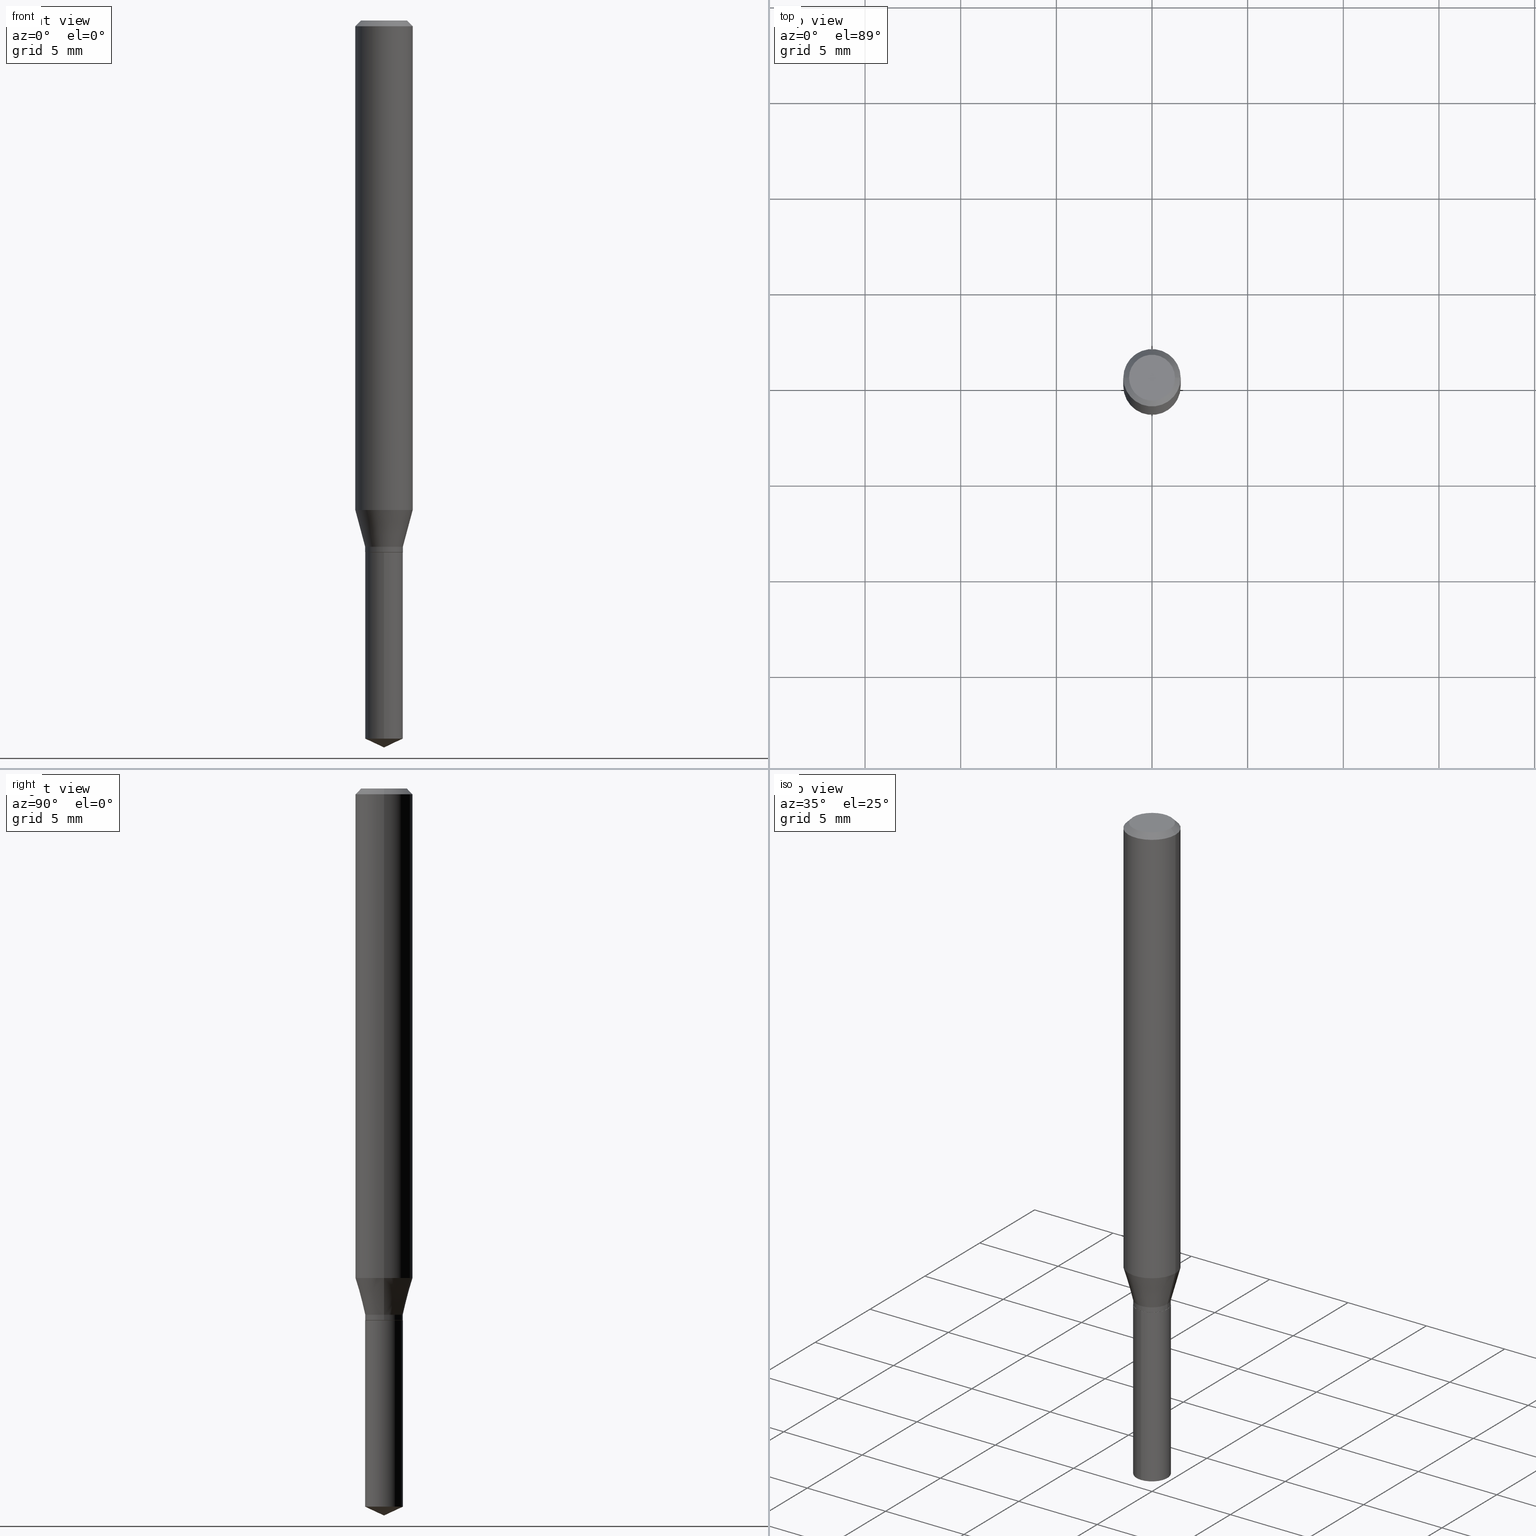
[diagram: canonical four-view strip — front | top / right | iso, engineering-drawing reading convention]
A machine part, canonical four-view strip (front | top / right | iso — engineering-drawing reading convention). The complete STEP part file that produces these views, byte-faithful:
ISO-10303-21;
HEADER;
FILE_DESCRIPTION (( 'STEP AP203' ),
    '1' );
FILE_NAME ('07597.STEP',
    '2024-04-23T23:31:26',
    ( '' ),
    ( '' ),
    'SwSTEP 2.0',
    'SolidWorks 2023',
    '' );
FILE_SCHEMA (( 'CONFIG_CONTROL_DESIGN' ));
ENDSEC;

DATA;
#1 = FACE_OUTER_BOUND ( 'NONE', #345, .T. ) ;
#2 = ORIENTED_EDGE ( 'NONE', *, *, #401, .F. ) ;
#3 = AXIS2_PLACEMENT_3D ( 'NONE', #266, #162, #277 ) ;
#4 = FACE_OUTER_BOUND ( 'NONE', #122, .T. ) ;
#5 = ORIENTED_EDGE ( 'NONE', *, *, #211, .F. ) ;
#6 = ADVANCED_FACE ( 'NONE', ( #465 ), #451, .F. ) ;
#7 = ORIENTED_EDGE ( 'NONE', *, *, #262, .T. ) ;
#8 = DIRECTION ( 'NONE',  ( 2.445458899330789267E-29, -3.491495526022433599E-15, -1.000000000000000000 ) ) ;
#9 = DIRECTION ( 'NONE',  ( -2.438088387897960049E-29, 3.491481338843145188E-15, 1.000000000000000000 ) ) ;
#10 = AXIS2_PLACEMENT_3D ( 'NONE', #343, #462, #77 ) ;
#11 = DIRECTION ( 'NONE',  ( -2.445458899330790108E-29, 3.491495526022433205E-15, 1.000000000000000000 ) ) ;
#12 = DIRECTION ( 'NONE',  ( -6.982962677686265922E-15, -1.000000000000000000, 3.520422672247761757E-15 ) ) ;
#13 = APPROVAL ( #155, 'UNSPECIFIED' ) ;
#14 = CYLINDRICAL_SURFACE ( 'NONE', #388, 0.03880000000000000115 ) ;
#15 = CIRCLE ( 'NONE', #239, 0.03880000000000000115 ) ;
#16 = DIRECTION ( 'NONE',  ( 1.000000000000000000, -6.982962677686266711E-15, 0.000000000000000000 ) ) ;
#17 = VECTOR ( 'NONE', #355, 39.37007874015748143 ) ;
#18 = EDGE_CURVE ( 'NONE', #201, #302, #119, .T. ) ;
#19 = VERTEX_POINT ( 'NONE', #294 ) ;
#20 = DIRECTION ( 'NONE',  ( -6.982962677686265922E-15, -1.000000000000000000, 3.520422672247761757E-15 ) ) ;
#21 = CARTESIAN_POINT ( 'NONE',  ( 2.648198170217884181E-29, -3.780925141833242313E-15, -1.082899999999999974 ) ) ;
#22 = CARTESIAN_POINT ( 'NONE',  ( 3.658672935554494692E-29, -5.223595400746700193E-15, -1.496099999999999985 ) ) ;
#23 = DIRECTION ( 'NONE',  ( -1.000000000000000000, 6.982962677686266711E-15, 0.000000000000000000 ) ) ;
#24 = ORIENTED_EDGE ( 'NONE', *, *, #474, .F. ) ;
#25 = VECTOR ( 'NONE', #190, 39.37007874015748143 ) ;
#26 = VECTOR ( 'NONE', #182, 39.37007874015748143 ) ;
#27 = ORIENTED_EDGE ( 'NONE', *, *, #18, .F. ) ;
#28 = ORIENTED_EDGE ( 'NONE', *, *, #354, .F. ) ;
#29 = CARTESIAN_POINT ( 'NONE',  ( -2.709389518942003441E-16, -0.03880000000000382449, -1.094499999999999806 ) ) ;
#30 = AXIS2_PLACEMENT_3D ( 'NONE', #193, #473, #361 ) ;
#31 = CIRCLE ( 'NONE', #478, 0.03829999999999999377 ) ;
#32 = COORDINATED_UNIVERSAL_TIME_OFFSET ( 5, 0, .BEHIND. ) ;
#33 = EDGE_CURVE ( 'NONE', #379, #304, #192, .T. ) ;
#34 = CARTESIAN_POINT ( 'NONE',  ( 2.676565608369631794E-29, -3.821426325363822773E-15, -1.094499999999999806 ) ) ;
#35 = CARTESIAN_POINT ( 'NONE',  ( 3.614416857297380941E-29, -5.160440217849142988E-15, -1.478007262863586080 ) ) ;
#36 = CARTESIAN_POINT ( 'NONE',  ( 2.676565608369631794E-29, -3.821426325363822773E-15, -1.094499999999999806 ) ) ;
#37 = CARTESIAN_POINT ( 'NONE',  ( 3.658651059288794515E-29, -5.223626456482161457E-15, -1.496099999999999985 ) ) ;
#38 = EDGE_CURVE ( 'NONE', #304, #201, #156, .T. ) ;
#39 = ORIENTED_EDGE ( 'NONE', *, *, #268, .F. ) ;
#40 = AXIS2_PLACEMENT_3D ( 'NONE', #129, #8, #115 ) ;
#41 = FACE_OUTER_BOUND ( 'NONE', #198, .T. ) ;
#42 = EDGE_LOOP ( 'NONE', ( #163, #248, #141, #24 ) ) ;
#43 = CARTESIAN_POINT ( 'NONE',  ( -0.03880000000000000115, -3.524612281788902517E-15, -1.082899999999999974 ) ) ;
#44 = ORIENTED_EDGE ( 'NONE', *, *, #38, .F. ) ;
#45 = CYLINDRICAL_SURFACE ( 'NONE', #10, 0.03880000000000000115 ) ;
#46 = AXIS2_PLACEMENT_3D ( 'NONE', #87, #241, #207 ) ;
#47 = EDGE_CURVE ( 'NONE', #201, #304, #341, .T. ) ;
#48 = DIRECTION ( 'NONE',  ( -2.445468806185136597E-29, 3.491481338843145583E-15, 1.000000000000000000 ) ) ;
#49 = DIRECTION ( 'NONE',  ( 1.000000000000000000, -6.982962677686266711E-15, 4.876176775795935793E-29 ) ) ;
#50 = DIRECTION ( 'NONE',  ( -0.7071067811865453523, 2.468850131082234184E-15, -0.7071067811865496822 ) ) ;
#51 = EDGE_CURVE ( 'NONE', #302, #19, #70, .T. ) ;
#52 = ORIENTED_EDGE ( 'NONE', *, *, #84, .F. ) ;
#53 = AXIS2_PLACEMENT_3D ( 'NONE', #237, #11, #12 ) ;
#54 = CARTESIAN_POINT ( 'NONE',  ( 2.676565608369631794E-29, -3.821426325363822773E-15, -1.094499999999999806 ) ) ;
#55 = DIRECTION ( 'NONE',  ( 2.445468806185136597E-29, -3.491481338843145583E-15, -1.000000000000000000 ) ) ;
#56 = ORIENTED_EDGE ( 'NONE', *, *, #89, .F. ) ;
#57 = DIRECTION ( 'NONE',  ( -2.445468806185136597E-29, 3.491481338843145583E-15, 1.000000000000000000 ) ) ;
#58 = ORIENTED_EDGE ( 'NONE', *, *, #47, .F. ) ;
#59 = LINE ( 'NONE', #437, #217 ) ;
#60 = ORIENTED_EDGE ( 'NONE', *, *, #245, .T. ) ;
#61 = CIRCLE ( 'NONE', #352, 0.03880000000000000115 ) ;
#62 = ADVANCED_FACE ( 'NONE', ( #1 ), #316, .T. ) ;
#63 = CC_DESIGN_APPROVAL ( #318, ( #364 ) ) ;
#64 = VERTEX_POINT ( 'NONE', #488 ) ;
#65 = ORIENTED_EDGE ( 'NONE', *, *, #191, .F. ) ;
#66 = PERSON_AND_ORGANIZATION ( #126, #295 ) ;
#67 = DIRECTION ( 'NONE',  ( 1.000000000000000000, -6.982962677686260400E-15, 0.000000000000000000 ) ) ;
#68 = ADVANCED_FACE ( 'NONE', ( #480 ), #78, .T. ) ;
#69 = APPROVAL_STATUS ( 'not_yet_approved' ) ;
#70 = LINE ( 'NONE', #265, #255 ) ;
#71 = AXIS2_PLACEMENT_3D ( 'NONE', #74, #229, #377 ) ;
#72 = AXIS2_PLACEMENT_3D ( 'NONE', #172, #174, #92 ) ;
#73 = CARTESIAN_POINT ( 'NONE',  ( 0.05905000000000011628, -3.929403776508231470E-15, -1.007325971146729948 ) ) ;
#74 = CARTESIAN_POINT ( 'NONE',  ( 2.888098660104663766E-31, -4.123439461173779647E-17, -0.01181000000000007044 ) ) ;
#75 = ORIENTED_EDGE ( 'NONE', *, *, #457, .T. ) ;
#76 = PERSON_AND_ORGANIZATION ( #126, #295 ) ;
#77 = DIRECTION ( 'NONE',  ( -6.982962677686265922E-15, -1.000000000000000000, 3.520422672247761757E-15 ) ) ;
#78 = CONICAL_SURFACE ( 'NONE', #272, 0.03829999999999999377, 0.7853981633974141952 ) ;
#79 = ORIENTED_EDGE ( 'NONE', *, *, #334, .F. ) ;
#80 = CIRCLE ( 'NONE', #479, 0.05904999999999999832 ) ;
#81 = DATE_AND_TIME ( #114, #132 ) ;
#82 = CARTESIAN_POINT ( 'NONE',  ( 2.463384240099476969E-29, -3.517059830390856155E-15, -1.007325971146729948 ) ) ;
#83 = ORIENTED_EDGE ( 'NONE', *, *, #18, .T. ) ;
#84 = EDGE_CURVE ( 'NONE', #64, #104, #372, .T. ) ;
#85 = CARTESIAN_POINT ( 'NONE',  ( 0.03880000000000000115, -4.051864093727469133E-15, -1.082899999999999974 ) ) ;
#86 =( GEOMETRIC_REPRESENTATION_CONTEXT ( 3 ) GLOBAL_UNCERTAINTY_ASSIGNED_CONTEXT ( ( #187 ) ) GLOBAL_UNIT_ASSIGNED_CONTEXT ( ( #253, #221, #487 ) ) REPRESENTATION_CONTEXT ( 'NONE', 'WORKASPACE' ) );
#87 = CARTESIAN_POINT ( 'NONE',  ( 2.675342873966538993E-29, -3.819680584694400481E-15, -1.093999999999999861 ) ) ;
#88 = CARTESIAN_POINT ( 'NONE',  ( 0.03880000000000000115, -4.090619536588628090E-15, -1.093999999999999861 ) ) ;
#89 = EDGE_CURVE ( 'NONE', #302, #164, #332, .T. ) ;
#90 = CARTESIAN_POINT ( 'NONE',  ( 8.265746106709734507E-48, -1.180129479067563789E-33, -3.380025165646692144E-19 ) ) ;
#91 = VERTEX_POINT ( 'NONE', #152 ) ;
#92 = DIRECTION ( 'NONE',  ( 1.000000000000000000, -6.982962677686266711E-15, 4.876176775795935232E-29 ) ) ;
#93 = ADVANCED_BREP_SHAPE_REPRESENTATION ( '07597', ( #278, #439, #326 ), #86 ) ;
#94 = DIRECTION ( 'NONE',  ( -2.445468806185136597E-29, 3.491481338843145583E-15, 1.000000000000000000 ) ) ;
#95 = ORIENTED_EDGE ( 'NONE', *, *, #245, .F. ) ;
#96 = DIRECTION ( 'NONE',  ( -2.445458899330790108E-29, 3.491495526022433205E-15, 1.000000000000000000 ) ) ;
#97 = CC_DESIGN_DATE_AND_TIME_ASSIGNMENT ( #117, #308, ( #441 ) ) ;
#98 = ORIENTED_EDGE ( 'NONE', *, *, #391, .T. ) ;
#99 =( LENGTH_UNIT ( ) NAMED_UNIT ( * ) SI_UNIT ( $, .METRE. ) );
#100 = ORIENTED_EDGE ( 'NONE', *, *, #51, .T. ) ;
#101 = AXIS2_PLACEMENT_3D ( 'NONE', #411, #417, #335 ) ;
#102 = CALENDAR_DATE ( 2024, 23, 4 ) ;
#103 = VECTOR ( 'NONE', #176, 39.37007874015748854 ) ;
#104 = VERTEX_POINT ( 'NONE', #213 ) ;
#105 = DATE_AND_TIME ( #263, #159 ) ;
#106 = CARTESIAN_POINT ( 'NONE',  ( 2.675342873966538993E-29, -3.819680584694400481E-15, -1.093999999999999861 ) ) ;
#107 = EDGE_CURVE ( 'NONE', #91, #220, #137, .T. ) ;
#108 = DATE_AND_TIME ( #102, #124 ) ;
#109 = FACE_OUTER_BOUND ( 'NONE', #258, .T. ) ;
#110 = APPLICATION_PROTOCOL_DEFINITION ( 'international standard', 'config_control_design', 1994, #393 ) ;
#111 = CARTESIAN_POINT ( 'NONE',  ( -0.03829999999999999377, -3.549288457567704397E-15, -1.094499999999999806 ) ) ;
#112 = CONICAL_SURFACE ( 'NONE', #3, 84.42940631927456252, 1.134464013796316895 ) ;
#113 = CC_DESIGN_APPROVAL ( #13, ( #441 ) ) ;
#114 = CALENDAR_DATE ( 2024, 23, 4 ) ;
#115 = DIRECTION ( 'NONE',  ( 6.982962677686265922E-15, 1.000000000000000000, -3.491495526022433599E-15 ) ) ;
#116 = VERTEX_POINT ( 'NONE', #29 ) ;
#117 = DATE_AND_TIME ( #418, #168 ) ;
#118 = DIRECTION ( 'NONE',  ( -2.445468806185136877E-29, 3.491481338843145188E-15, 1.000000000000000000 ) ) ;
#119 = LINE ( 'NONE', #382, #323 ) ;
#120 = COORDINATED_UNIVERSAL_TIME_OFFSET ( 5, 0, .BEHIND. ) ;
#121 = CARTESIAN_POINT ( 'NONE',  ( 2.648198170217884181E-29, -3.780925141833242313E-15, -1.082899999999999974 ) ) ;
#122 = EDGE_LOOP ( 'NONE', ( #321, #267, #98, #2 ) ) ;
#123 = CONICAL_SURFACE ( 'NONE', #396, 0.03880000000000000115, 0.2617993877991499074 ) ;
#124 = LOCAL_TIME ( 19, 31, 26.00000000000000000, #329 ) ;
#125 = PERSON_AND_ORGANIZATION_ROLE ( 'classification_officer' ) ;
#126 = PERSON ( 'UNSPECIFIED', 'UNSPECIFIED', 'UNSPECIFIED', ('UNSPECIFIED'), ('UNSPECIFIED'), ('UNSPECIFIED') ) ;
#127 = DIRECTION ( 'NONE',  ( -6.982962677686265922E-15, -1.000000000000000000, 0.000000000000000000 ) ) ;
#128 = ADVANCED_FACE ( 'NONE', ( #453 ), #320, .T. ) ;
#129 = CARTESIAN_POINT ( 'NONE',  ( 2.676565608369631794E-29, -3.821426325363822773E-15, -1.094499999999999806 ) ) ;
#130 = DIRECTION ( 'NONE',  ( 0.7071067811865232589, -2.468850131082003836E-15, 0.7071067811865715536 ) ) ;
#131 = AXIS2_PLACEMENT_3D ( 'NONE', #261, #374, #443 ) ;
#132 = LOCAL_TIME ( 19, 31, 26.00000000000000000, #346 ) ;
#133 = EDGE_CURVE ( 'NONE', #147, #448, #188, .T. ) ;
#134 = CARTESIAN_POINT ( 'NONE',  ( -0.05904999999999999832, 3.711095515056362547E-16, -0.01181000000000007044 ) ) ;
#135 = EDGE_LOOP ( 'NONE', ( #348, #402, #423, #367 ) ) ;
#136 = DIRECTION ( 'NONE',  ( -2.445468806185136597E-29, 3.491481338843145583E-15, 1.000000000000000000 ) ) ;
#137 = LINE ( 'NONE', #246, #440 ) ;
#138 = CLOSED_SHELL ( 'NONE', ( #218, #227, #62, #298, #240 ) ) ;
#139 = DIMENSIONAL_EXPONENTS ( 1.000000000000000000, 0.000000000000000000, 0.000000000000000000, 0.000000000000000000, 0.000000000000000000, 0.000000000000000000, 0.000000000000000000 ) ;
#140 = CIRCLE ( 'NONE', #486, 0.03829999999999999377 ) ;
#141 = ORIENTED_EDGE ( 'NONE', *, *, #185, .F. ) ;
#142 = AXIS2_PLACEMENT_3D ( 'NONE', #422, #48, #389 ) ;
#143 = LINE ( 'NONE', #22, #288 ) ;
#144 = ADVANCED_FACE ( 'NONE', ( #109 ), #365, .T. ) ;
#145 = DIRECTION ( 'NONE',  ( -0.7071067811865232589, 7.493145998870265808E-15, 0.7071067811865715536 ) ) ;
#146 = ORIENTED_EDGE ( 'NONE', *, *, #185, .T. ) ;
#147 = VERTEX_POINT ( 'NONE', #291 ) ;
#148 = PERSON_AND_ORGANIZATION_ROLE ( 'creator' ) ;
#149 = ORIENTED_EDGE ( 'NONE', *, *, #427, .T. ) ;
#150 = COORDINATED_UNIVERSAL_TIME_OFFSET ( 5, 0, .BEHIND. ) ;
#151 = APPROVAL ( #69, 'UNSPECIFIED' ) ;
#152 = CARTESIAN_POINT ( 'NONE',  ( 2.756905814749549707E-16, 0.03879999999999483862, -1.478007262863586302 ) ) ;
#153 = DATE_AND_TIME ( #336, #357 ) ;
#154 = DIRECTION ( 'NONE',  ( -2.445468806185136597E-29, 3.491481338843145583E-15, 1.000000000000000000 ) ) ;
#155 = APPROVAL_STATUS ( 'not_yet_approved' ) ;
#156 = CIRCLE ( 'NONE', #282, 0.03880000000000000115 ) ;
#157 = DIRECTION ( 'NONE',  ( -2.445468806185136597E-29, 3.491481338843145583E-15, 1.000000000000000000 ) ) ;
#158 = AXIS2_PLACEMENT_3D ( 'NONE', #359, #55, #23 ) ;
#159 = LOCAL_TIME ( 19, 31, 26.00000000000000000, #150 ) ;
#160 = EDGE_LOOP ( 'NONE', ( #289, #307, #476, #257 ) ) ;
#161 = ADVANCED_FACE ( 'NONE', ( #337 ), #475, .F. ) ;
#162 = DIRECTION ( 'NONE',  ( -2.445458899330790108E-29, 3.491495526022433205E-15, 1.000000000000000000 ) ) ;
#163 = ORIENTED_EDGE ( 'NONE', *, *, #433, .T. ) ;
#164 = VERTEX_POINT ( 'NONE', #73 ) ;
#165 = ADVANCED_FACE ( 'NONE', ( #225 ), #309, .T. ) ;
#166 = FACE_OUTER_BOUND ( 'NONE', #481, .T. ) ;
#167 = EDGE_LOOP ( 'NONE', ( #146, #484, #44, #270 ) ) ;
#168 = LOCAL_TIME ( 19, 31, 26.00000000000000000, #120 ) ;
#169 = SECURITY_CLASSIFICATION_LEVEL ( 'unclassified' ) ;
#170 = DIRECTION ( 'NONE',  ( -2.445468806185136597E-29, 3.491481338843145583E-15, 1.000000000000000000 ) ) ;
#171 = LINE ( 'NONE', #306, #380 ) ;
#172 = CARTESIAN_POINT ( 'NONE',  ( 0.000000000000000000, 0.000000000000000000, 0.000000000000000000 ) ) ;
#173 = CIRCLE ( 'NONE', #142, 0.05904999999999999832 ) ;
#174 = DIRECTION ( 'NONE',  ( -2.445468806185136597E-29, 3.491481338843145583E-15, 1.000000000000000000 ) ) ;
#175 = ORIENTED_EDGE ( 'NONE', *, *, #334, .T. ) ;
#176 = DIRECTION ( 'NONE',  ( 0.2588190451025211836, 1.565188264969622559E-15, 0.9659258262890679791 ) ) ;
#177 = CARTESIAN_POINT ( 'NONE',  ( 2.463384240099476969E-29, -3.517059830390856155E-15, -1.007325971146729948 ) ) ;
#178 = DIRECTION ( 'NONE',  ( -2.445468806185136597E-29, 3.491481338843145583E-15, 1.000000000000000000 ) ) ;
#179 = EDGE_CURVE ( 'NONE', #147, #186, #140, .T. ) ;
#180 = DIRECTION ( 'NONE',  ( 1.000000000000000000, -6.982962677686272233E-15, 0.000000000000000000 ) ) ;
#181 = CONICAL_SURFACE ( 'NONE', #71, 0.05904999999999999832, 0.7853981633974452814 ) ;
#182 = DIRECTION ( 'NONE',  ( -2.445458899330790108E-29, 3.491495526022433599E-15, 1.000000000000000000 ) ) ;
#183 = EDGE_LOOP ( 'NONE', ( #236, #83, #39, #252 ) ) ;
#184 = APPROVAL_ROLE ( '' ) ;
#185 = EDGE_CURVE ( 'NONE', #379, #448, #61, .T. ) ;
#186 = VERTEX_POINT ( 'NONE', #325 ) ;
#187 = UNCERTAINTY_MEASURE_WITH_UNIT (LENGTH_MEASURE( 1.000000000000000082E-05 ), #253, 'distance_accuracy_value', 'NONE');
#188 = LINE ( 'NONE', #111, #256 ) ;
#189 = CARTESIAN_POINT ( 'NONE',  ( 2.676565608369631794E-29, -3.821426325363822773E-15, -1.094499999999999806 ) ) ;
#190 = DIRECTION ( 'NONE',  ( -2.445468806185136877E-29, 3.491481338843145188E-15, 1.000000000000000000 ) ) ;
#191 = EDGE_CURVE ( 'NONE', #91, #344, #434, .T. ) ;
#192 = LINE ( 'NONE', #340, #25 ) ;
#193 = CARTESIAN_POINT ( 'NONE',  ( 8.265746106709734507E-48, -1.180129479067563789E-33, -3.380025165646692144E-19 ) ) ;
#194 = AXIS2_PLACEMENT_3D ( 'NONE', #351, #273, #279 ) ;
#195 = CC_DESIGN_SECURITY_CLASSIFICATION ( #441, ( #333 ) ) ;
#196 = ORIENTED_EDGE ( 'NONE', *, *, #370, .T. ) ;
#197 = DIRECTION ( 'NONE',  ( -6.328713451373378056E-15, -0.9063077870366496036, 0.4226182617407002184 ) ) ;
#198 = EDGE_LOOP ( 'NONE', ( #7, #286 ) ) ;
#199 = EDGE_CURVE ( 'NONE', #104, #19, #173, .T. ) ;
#200 = PLANE ( 'NONE',  #40 ) ;
#201 = VERTEX_POINT ( 'NONE', #43 ) ;
#202 = DESIGN_CONTEXT ( 'detailed design', #393, 'design' ) ;
#203 = DIRECTION ( 'NONE',  ( 1.000000000000000000, -6.982962677686260400E-15, 0.000000000000000000 ) ) ;
#204 = AXIS2_PLACEMENT_3D ( 'NONE', #36, #9, #461 ) ;
#205 = CIRCLE ( 'NONE', #46, 0.03880000000000000115 ) ;
#206 = CARTESIAN_POINT ( 'NONE',  ( 2.648198170217884181E-29, -3.780925141833242313E-15, -1.082899999999999974 ) ) ;
#207 = DIRECTION ( 'NONE',  ( 1.000000000000000000, -6.982962677686272233E-15, 0.000000000000000000 ) ) ;
#208 = CARTESIAN_POINT ( 'NONE',  ( 0.000000000000000000, 0.000000000000000000, 0.000000000000000000 ) ) ;
#209 = LINE ( 'NONE', #363, #103 ) ;
#210 = DIRECTION ( 'NONE',  ( -2.445468806185136877E-29, 3.491481338843145188E-15, 1.000000000000000000 ) ) ;
#211 = EDGE_CURVE ( 'NONE', #448, #201, #171, .T. ) ;
#212 = ORIENTED_EDGE ( 'NONE', *, *, #33, .T. ) ;
#213 = CARTESIAN_POINT ( 'NONE',  ( 0.05904999999999999832, -4.535783407291118600E-16, -0.01181000000000007044 ) ) ;
#214 = ORIENTED_EDGE ( 'NONE', *, *, #285, .F. ) ;
#215 = AXIS2_PLACEMENT_3D ( 'NONE', #35, #455, #259 ) ;
#216 = VERTEX_POINT ( 'NONE', #37 ) ;
#217 = VECTOR ( 'NONE', #130, 39.37007874015748854 ) ;
#218 = ADVANCED_FACE ( 'NONE', ( #314 ), #45, .T. ) ;
#219 = ORIENTED_EDGE ( 'NONE', *, *, #285, .T. ) ;
#220 = VERTEX_POINT ( 'NONE', #235 ) ;
#221 =( NAMED_UNIT ( * ) PLANE_ANGLE_UNIT ( ) SI_UNIT ( $, .RADIAN. ) );
#222 = DIRECTION ( 'NONE',  ( 1.000000000000000000, -6.982962677686273021E-15, 0.000000000000000000 ) ) ;
#223 = DIRECTION ( 'NONE',  ( 0.000000000000000000, 0.000000000000000000, 1.000000000000000000 ) ) ;
#224 = APPROVAL_PERSON_ORGANIZATION ( #429, #13, #421 ) ;
#225 = FACE_OUTER_BOUND ( 'NONE', #135, .T. ) ;
#226 = PERSON_AND_ORGANIZATION ( #126, #295 ) ;
#227 = ADVANCED_FACE ( 'NONE', ( #347 ), #112, .T. ) ;
#228 = CARTESIAN_POINT ( 'NONE',  ( 2.676565608369631794E-29, -3.821426325363822773E-15, -1.094499999999999806 ) ) ;
#229 = DIRECTION ( 'NONE',  ( 2.445468806185136597E-29, -3.491481338843145583E-15, -1.000000000000000000 ) ) ;
#230 = ORIENTED_EDGE ( 'NONE', *, *, #268, .T. ) ;
#231 = VECTOR ( 'NONE', #362, 39.37007874015748143 ) ;
#232 = PRODUCT_DEFINITION_SHAPE ( 'NONE', 'NONE',  #364 ) ;
#233 = CC_DESIGN_PERSON_AND_ORGANIZATION_ASSIGNMENT ( #226, #148, ( #364 ) ) ;
#234 = ORIENTED_EDGE ( 'NONE', *, *, #354, .T. ) ;
#235 = CARTESIAN_POINT ( 'NONE',  ( 2.756905814749549707E-16, 0.03879999999999617089, -1.094500000000000028 ) ) ;
#236 = ORIENTED_EDGE ( 'NONE', *, *, #38, .T. ) ;
#237 = CARTESIAN_POINT ( 'NONE',  ( 2.676565608369631794E-29, -3.821426325363822773E-15, -1.094499999999999806 ) ) ;
#238 = DIRECTION ( 'NONE',  ( -2.445468806185136597E-29, 3.491481338843145583E-15, 1.000000000000000000 ) ) ;
#239 = AXIS2_PLACEMENT_3D ( 'NONE', #54, #96, #20 ) ;
#240 = ADVANCED_FACE ( 'NONE', ( #41 ), #200, .F. ) ;
#241 = DIRECTION ( 'NONE',  ( -2.445468806185136597E-29, 3.491481338843145583E-15, 1.000000000000000000 ) ) ;
#242 = FACE_OUTER_BOUND ( 'NONE', #160, .T. ) ;
#243 = EDGE_LOOP ( 'NONE', ( #95, #234, #214 ) ) ;
#244 = DIRECTION ( 'NONE',  ( -2.445468806185136597E-29, 3.491481338843145583E-15, 1.000000000000000000 ) ) ;
#245 = EDGE_CURVE ( 'NONE', #216, #344, #386, .T. ) ;
#246 = CARTESIAN_POINT ( 'NONE',  ( 2.756905814749455537E-16, 0.03879999999999617089, -1.094500000000000028 ) ) ;
#247 = CIRCLE ( 'NONE', #415, 0.03880000000000000115 ) ;
#248 = ORIENTED_EDGE ( 'NONE', *, *, #133, .T. ) ;
#249 = DIRECTION ( 'NONE',  ( -2.445468806185136597E-29, 3.491481338843145583E-15, 1.000000000000000000 ) ) ;
#250 = ORIENTED_EDGE ( 'NONE', *, *, #262, .F. ) ;
#251 = CARTESIAN_POINT ( 'NONE',  ( -0.03880000000000000115, -3.524612281788902517E-15, -1.093999999999999861 ) ) ;
#252 = ORIENTED_EDGE ( 'NONE', *, *, #457, .F. ) ;
#253 =( CONVERSION_BASED_UNIT ( 'INCH', #452 ) LENGTH_UNIT ( ) NAMED_UNIT ( #139 ) );
#254 = ADVANCED_FACE ( 'NONE', ( #166 ), #317, .T. ) ;
#255 = VECTOR ( 'NONE', #210, 39.37007874015748143 ) ;
#256 = VECTOR ( 'NONE', #145, 39.37007874015748854 ) ;
#257 = ORIENTED_EDGE ( 'NONE', *, *, #427, .F. ) ;
#258 = EDGE_LOOP ( 'NONE', ( #394, #327, #444, #79 ) ) ;
#259 = DIRECTION ( 'NONE',  ( -6.982962677686265922E-15, -1.000000000000000000, 0.000000000000000000 ) ) ;
#260 = APPROVAL_DATE_TIME ( #108, #318 ) ;
#261 = CARTESIAN_POINT ( 'NONE',  ( 4.132873053354867254E-48, -5.900647395337818946E-34, -1.690012582823346072E-19 ) ) ;
#262 = EDGE_CURVE ( 'NONE', #116, #220, #324, .T. ) ;
#263 = CALENDAR_DATE ( 2024, 23, 4 ) ;
#264 = APPROVAL_PERSON_ORGANIZATION ( #66, #318, #184 ) ;
#265 = CARTESIAN_POINT ( 'NONE',  ( -0.05905000000000006077, 4.195754854663395916E-16, -2.904631170795524694E-30 ) ) ;
#266 = CARTESIAN_POINT ( 'NONE',  ( -9.261924752013118283E-28, 1.322368428517963298E-13, 37.87397874015748300 ) ) ;
#267 = ORIENTED_EDGE ( 'NONE', *, *, #191, .T. ) ;
#268 = EDGE_CURVE ( 'NONE', #164, #302, #293, .T. ) ;
#269 = FACE_OUTER_BOUND ( 'NONE', #183, .T. ) ;
#270 = ORIENTED_EDGE ( 'NONE', *, *, #33, .F. ) ;
#271 = PERSON_AND_ORGANIZATION ( #126, #295 ) ;
#272 = AXIS2_PLACEMENT_3D ( 'NONE', #34, #301, #222 ) ;
#273 = DIRECTION ( 'NONE',  ( -2.445458899330790108E-29, 3.491495526022433205E-15, 1.000000000000000000 ) ) ;
#274 = VECTOR ( 'NONE', #197, 39.37007874015748854 ) ;
#275 = EDGE_LOOP ( 'NONE', ( #196, #436 ) ) ;
#276 = APPROVAL_DATE_TIME ( #153, #151 ) ;
#277 = DIRECTION ( 'NONE',  ( -6.982962677686267499E-15, -1.000000000000000000, 3.520397390770444404E-15 ) ) ;
#278 = MANIFOLD_SOLID_BREP ( 'Body-Move/Copy2[1]', #138 ) ;
#279 = DIRECTION ( 'NONE',  ( -6.982962677686265922E-15, -1.000000000000000000, 3.520422672247761757E-15 ) ) ;
#280 = CC_DESIGN_DATE_AND_TIME_ASSIGNMENT ( #105, #412, ( #364 ) ) ;
#281 = CARTESIAN_POINT ( 'NONE',  ( 2.888098660104663766E-31, -4.123439461173779647E-17, -0.01181000000000007044 ) ) ;
#282 = AXIS2_PLACEMENT_3D ( 'NONE', #299, #157, #338 ) ;
#283 = VECTOR ( 'NONE', #50, 39.37007874015748143 ) ;
#284 = DIRECTION ( 'NONE',  ( -2.445468806185136597E-29, 3.491481338843145583E-15, 1.000000000000000000 ) ) ;
#285 = EDGE_CURVE ( 'NONE', #344, #91, #247, .T. ) ;
#286 = ORIENTED_EDGE ( 'NONE', *, *, #401, .T. ) ;
#287 = DIRECTION ( 'NONE',  ( -2.445468806185136597E-29, 3.491481338843145583E-15, 1.000000000000000000 ) ) ;
#288 = VECTOR ( 'NONE', #471, 39.37007874015748854 ) ;
#289 = ORIENTED_EDGE ( 'NONE', *, *, #51, .F. ) ;
#290 = LINE ( 'NONE', #445, #26 ) ;
#291 = CARTESIAN_POINT ( 'NONE',  ( -0.03829999999999999377, -3.546639230393592802E-15, -1.094499999999999806 ) ) ;
#292 = EDGE_LOOP ( 'NONE', ( #52, #420, #175, #149 ) ) ;
#293 = CIRCLE ( 'NONE', #450, 0.05905000000000011628 ) ;
#294 = CARTESIAN_POINT ( 'NONE',  ( -0.05904999999999999832, -1.359571627034956660E-15, -0.01181000000000007044 ) ) ;
#295 = ORGANIZATION ( 'UNSPECIFIED', 'UNSPECIFIED', '' ) ;
#296 = PERSON_AND_ORGANIZATION_ROLE ( 'design_owner' ) ;
#297 = DIRECTION ( 'NONE',  ( -2.445458899330790108E-29, 3.491495526022433599E-15, 1.000000000000000000 ) ) ;
#298 = ADVANCED_FACE ( 'NONE', ( #4 ), #430, .T. ) ;
#299 = CARTESIAN_POINT ( 'NONE',  ( 2.648198170217884181E-29, -3.780925141833242313E-15, -1.082899999999999974 ) ) ;
#300 = AXIS2_PLACEMENT_3D ( 'NONE', #397, #287, #413 ) ;
#301 = DIRECTION ( 'NONE',  ( -2.445468806185136597E-29, 3.491481338843145583E-15, 1.000000000000000000 ) ) ;
#302 = VERTEX_POINT ( 'NONE', #460 ) ;
#303 = ADVANCED_FACE ( 'NONE', ( #269 ), #123, .T. ) ;
#304 = VERTEX_POINT ( 'NONE', #85 ) ;
#305 = PRODUCT ( '07597', '07597', '', ( #410 ) ) ;
#306 = CARTESIAN_POINT ( 'NONE',  ( -0.03880000000000000115, 2.756905814749188803E-16, -1.908546815018903192E-30 ) ) ;
#307 = ORIENTED_EDGE ( 'NONE', *, *, #89, .T. ) ;
#308 = DATE_TIME_ROLE ( 'classification_date' ) ;
#309 = CONICAL_SURFACE ( 'NONE', #470, 0.03829999999999999377, 0.7853981633974141952 ) ;
#310 = DIRECTION ( 'NONE',  ( -0.2588190451025211836, 5.211531920934547886E-15, 0.9659258262890679791 ) ) ;
#311 = SHAPE_DEFINITION_REPRESENTATION ( #232, #93 ) ;
#312 = DIRECTION ( 'NONE',  ( 1.000000000000000000, -6.982962677686260400E-15, 0.000000000000000000 ) ) ;
#313 = ADVANCED_FACE ( 'NONE', ( #419 ), #181, .T. ) ;
#314 = FACE_OUTER_BOUND ( 'NONE', #330, .T. ) ;
#315 = CARTESIAN_POINT ( 'NONE',  ( 0.000000000000000000, 0.000000000000000000, 0.000000000000000000 ) ) ;
#316 = CONICAL_SURFACE ( 'NONE', #101, 84.42940631927456252, 1.134464013796316895 ) ;
#317 = CONICAL_SURFACE ( 'NONE', #356, 0.03880000000000000115, 0.2617993877991499074 ) ;
#318 = APPROVAL ( #483, 'UNSPECIFIED' ) ;
#319 = CYLINDRICAL_SURFACE ( 'NONE', #72, 0.03880000000000000115 ) ;
#320 = CYLINDRICAL_SURFACE ( 'NONE', #300, 0.05905000000000006077 ) ;
#321 = ORIENTED_EDGE ( 'NONE', *, *, #107, .F. ) ;
#322 = CARTESIAN_POINT ( 'NONE',  ( 2.676565608369631794E-29, -3.821426325363822773E-15, -1.094499999999999806 ) ) ;
#323 = VECTOR ( 'NONE', #310, 39.37007874015748854 ) ;
#324 = CIRCLE ( 'NONE', #194, 0.03880000000000000115 ) ;
#325 = CARTESIAN_POINT ( 'NONE',  ( 0.03829999999999999377, -4.088873795919206586E-15, -1.094499999999999806 ) ) ;
#326 = AXIS2_PLACEMENT_3D ( 'NONE', #331, #223, #454 ) ;
#327 = ORIENTED_EDGE ( 'NONE', *, *, #84, .T. ) ;
#328 = EDGE_CURVE ( 'NONE', #64, #368, #342, .T. ) ;
#329 = COORDINATED_UNIVERSAL_TIME_OFFSET ( 5, 0, .BEHIND. ) ;
#330 = EDGE_LOOP ( 'NONE', ( #219, #384, #250, #371 ) ) ;
#331 = CARTESIAN_POINT ( 'NONE',  ( 0.000000000000000000, 0.000000000000000000, 0.000000000000000000 ) ) ;
#332 = CIRCLE ( 'NONE', #416, 0.05905000000000011628 ) ;
#333 = PRODUCT_DEFINITION_FORMATION_WITH_SPECIFIED_SOURCE ( 'ANY', '', #305, .NOT_KNOWN. ) ;
#334 = EDGE_CURVE ( 'NONE', #368, #19, #395, .T. ) ;
#335 = DIRECTION ( 'NONE',  ( -6.982962677686267499E-15, -1.000000000000000000, 3.520397390770444404E-15 ) ) ;
#336 = CALENDAR_DATE ( 2024, 23, 4 ) ;
#337 = FACE_OUTER_BOUND ( 'NONE', #275, .T. ) ;
#338 = DIRECTION ( 'NONE',  ( 1.000000000000000000, -6.982962677686260400E-15, 0.000000000000000000 ) ) ;
#339 = CC_DESIGN_PERSON_AND_ORGANIZATION_ASSIGNMENT ( #76, #125, ( #441 ) ) ;
#340 = CARTESIAN_POINT ( 'NONE',  ( 0.03880000000000000115, -2.709389518942271653E-16, 1.891956589008822900E-30 ) ) ;
#341 = CIRCLE ( 'NONE', #469, 0.03880000000000000115 ) ;
#342 = CIRCLE ( 'NONE', #30, 0.04724000000000000421 ) ;
#343 = CARTESIAN_POINT ( 'NONE',  ( 2.676565608369631794E-29, -3.821426325363822773E-15, -1.094499999999999806 ) ) ;
#344 = VERTEX_POINT ( 'NONE', #353 ) ;
#345 = EDGE_LOOP ( 'NONE', ( #28, #60, #65 ) ) ;
#346 = COORDINATED_UNIVERSAL_TIME_OFFSET ( 5, 0, .BEHIND. ) ;
#347 = FACE_OUTER_BOUND ( 'NONE', #243, .T. ) ;
#348 = ORIENTED_EDGE ( 'NONE', *, *, #133, .F. ) ;
#349 = PERSON_AND_ORGANIZATION_ROLE ( 'creator' ) ;
#350 = ADVANCED_FACE ( 'NONE', ( #477 ), #14, .T. ) ;
#351 = CARTESIAN_POINT ( 'NONE',  ( 2.676565608369631794E-29, -3.821426325363822773E-15, -1.094499999999999806 ) ) ;
#352 = AXIS2_PLACEMENT_3D ( 'NONE', #106, #154, #180 ) ;
#353 = CARTESIAN_POINT ( 'NONE',  ( -2.709389518941908777E-16, -0.03880000000000514288, -1.478007262863586080 ) ) ;
#354 = EDGE_CURVE ( 'NONE', #216, #91, #143, .T. ) ;
#355 = DIRECTION ( 'NONE',  ( -2.445468806185136877E-29, 3.491481338843145188E-15, 1.000000000000000000 ) ) ;
#356 = AXIS2_PLACEMENT_3D ( 'NONE', #121, #432, #203 ) ;
#357 = LOCAL_TIME ( 19, 31, 26.00000000000000000, #32 ) ;
#358 = FACE_OUTER_BOUND ( 'NONE', #167, .T. ) ;
#359 = CARTESIAN_POINT ( 'NONE',  ( 2.888098660104663766E-31, -4.123439461173779647E-17, -0.01181000000000007044 ) ) ;
#360 = ORIENTED_EDGE ( 'NONE', *, *, #47, .T. ) ;
#361 = DIRECTION ( 'NONE',  ( 1.000000000000000000, -6.982962677686266711E-15, 4.876185090822587894E-29 ) ) ;
#362 = DIRECTION ( 'NONE',  ( 0.7071067811865453523, -7.319954787623248157E-15, -0.7071067811865496822 ) ) ;
#363 = CARTESIAN_POINT ( 'NONE',  ( 0.03880000000000000115, -4.051864093727469133E-15, -1.082899999999999974 ) ) ;
#364 = PRODUCT_DEFINITION ( 'UNKNOWN', '', #333, #202 ) ;
#365 = CONICAL_SURFACE ( 'NONE', #158, 0.05904999999999999832, 0.7853981633974452814 ) ;
#366 = APPROVAL_PERSON_ORGANIZATION ( #375, #151, #373 ) ;
#367 = ORIENTED_EDGE ( 'NONE', *, *, #482, .F. ) ;
#368 = VERTEX_POINT ( 'NONE', #438 ) ;
#369 = APPLICATION_CONTEXT ( 'configuration controlled 3d designs of mechanical parts and assemblies' ) ;
#370 = EDGE_CURVE ( 'NONE', #368, #64, #424, .T. ) ;
#371 = ORIENTED_EDGE ( 'NONE', *, *, #391, .F. ) ;
#372 = LINE ( 'NONE', #400, #231 ) ;
#373 = APPROVAL_ROLE ( '' ) ;
#374 = DIRECTION ( 'NONE',  ( 2.438088387897960049E-29, -3.491481338843145188E-15, -1.000000000000000000 ) ) ;
#375 = PERSON_AND_ORGANIZATION ( #126, #295 ) ;
#376 = DIRECTION ( 'NONE',  ( 1.000000000000000000, -6.982962677686273021E-15, 0.000000000000000000 ) ) ;
#377 = DIRECTION ( 'NONE',  ( -1.000000000000000000, 6.982962677686266711E-15, 0.000000000000000000 ) ) ;
#378 = PRODUCT_RELATED_PRODUCT_CATEGORY ( 'detail', '', ( #305 ) ) ;
#379 = VERTEX_POINT ( 'NONE', #88 ) ;
#380 = VECTOR ( 'NONE', #118, 39.37007874015748143 ) ;
#381 = CARTESIAN_POINT ( 'NONE',  ( 3.658651059288795076E-29, -5.223626456482161457E-15, -1.496099999999999985 ) ) ;
#382 = CARTESIAN_POINT ( 'NONE',  ( -0.03880000000000000115, -3.505234560358323432E-15, -1.082899999999999974 ) ) ;
#383 = DIRECTION ( 'NONE',  ( -2.445458899330790108E-29, 3.491495526022433205E-15, 1.000000000000000000 ) ) ;
#384 = ORIENTED_EDGE ( 'NONE', *, *, #107, .T. ) ;
#385 = ADVANCED_FACE ( 'NONE', ( #242 ), #435, .T. ) ;
#386 = LINE ( 'NONE', #381, #274 ) ;
#387 = APPROVAL_DATE_TIME ( #81, #13 ) ;
#388 = AXIS2_PLACEMENT_3D ( 'NONE', #315, #472, #390 ) ;
#389 = DIRECTION ( 'NONE',  ( 1.000000000000000000, -6.982962677686266711E-15, 0.000000000000000000 ) ) ;
#390 = DIRECTION ( 'NONE',  ( 1.000000000000000000, -6.982962677686266711E-15, 4.876176775795935232E-29 ) ) ;
#391 = EDGE_CURVE ( 'NONE', #344, #116, #290, .T. ) ;
#392 = DIRECTION ( 'NONE',  ( 1.000000000000000000, -6.982962677686273021E-15, 0.000000000000000000 ) ) ;
#393 = APPLICATION_CONTEXT ( 'configuration controlled 3d designs of mechanical parts and assemblies' ) ;
#394 = ORIENTED_EDGE ( 'NONE', *, *, #328, .F. ) ;
#395 = LINE ( 'NONE', #134, #283 ) ;
#396 = AXIS2_PLACEMENT_3D ( 'NONE', #206, #170, #312 ) ;
#397 = CARTESIAN_POINT ( 'NONE',  ( 0.000000000000000000, 0.000000000000000000, 0.000000000000000000 ) ) ;
#398 = EDGE_LOOP ( 'NONE', ( #409, #459 ) ) ;
#399 = DIRECTION ( 'NONE',  ( 1.000000000000000000, -6.982962677686266711E-15, 4.876185090822587894E-29 ) ) ;
#400 = CARTESIAN_POINT ( 'NONE',  ( 0.05904999999999999832, -4.463468013801466955E-16, -0.01181000000000007044 ) ) ;
#401 = EDGE_CURVE ( 'NONE', #220, #116, #15, .T. ) ;
#402 = ORIENTED_EDGE ( 'NONE', *, *, #179, .T. ) ;
#403 = LINE ( 'NONE', #467, #17 ) ;
#404 = ORIENTED_EDGE ( 'NONE', *, *, #482, .T. ) ;
#405 = AXIS2_PLACEMENT_3D ( 'NONE', #208, #136, #49 ) ;
#406 = EDGE_LOOP ( 'NONE', ( #230, #100, #463, #428 ) ) ;
#407 = PERSON_AND_ORGANIZATION ( #126, #295 ) ;
#408 = CC_DESIGN_PERSON_AND_ORGANIZATION_ASSIGNMENT ( #407, #296, ( #305 ) ) ;
#409 = ORIENTED_EDGE ( 'NONE', *, *, #433, .F. ) ;
#410 = MECHANICAL_CONTEXT ( 'NONE', #369, 'mechanical' ) ;
#411 = CARTESIAN_POINT ( 'NONE',  ( -9.261924752013118283E-28, 1.322368428517963298E-13, 37.87397874015748300 ) ) ;
#412 = DATE_TIME_ROLE ( 'creation_date' ) ;
#413 = DIRECTION ( 'NONE',  ( 1.000000000000000000, -6.982962677686266711E-15, 4.876176775795935793E-29 ) ) ;
#414 = CLOSED_SHELL ( 'NONE', ( #68, #144, #128, #303, #490, #350, #254, #385, #313, #161, #6, #165 ) ) ;
#415 = AXIS2_PLACEMENT_3D ( 'NONE', #466, #383, #127 ) ;
#416 = AXIS2_PLACEMENT_3D ( 'NONE', #177, #57, #458 ) ;
#417 = DIRECTION ( 'NONE',  ( -2.445458899330790108E-29, 3.491495526022433205E-15, 1.000000000000000000 ) ) ;
#418 = CALENDAR_DATE ( 2024, 23, 4 ) ;
#419 = FACE_OUTER_BOUND ( 'NONE', #292, .T. ) ;
#420 = ORIENTED_EDGE ( 'NONE', *, *, #370, .F. ) ;
#421 = APPROVAL_ROLE ( '' ) ;
#422 = CARTESIAN_POINT ( 'NONE',  ( 2.888098660104663766E-31, -4.123439461173779647E-17, -0.01181000000000007044 ) ) ;
#423 = ORIENTED_EDGE ( 'NONE', *, *, #474, .T. ) ;
#424 = CIRCLE ( 'NONE', #456, 0.04724000000000000421 ) ;
#425 = CC_DESIGN_APPROVAL ( #151, ( #333 ) ) ;
#426 = DIRECTION ( 'NONE',  ( 1.000000000000000000, -6.982962677686266711E-15, 0.000000000000000000 ) ) ;
#427 = EDGE_CURVE ( 'NONE', #19, #104, #80, .T. ) ;
#428 = ORIENTED_EDGE ( 'NONE', *, *, #449, .F. ) ;
#429 = PERSON_AND_ORGANIZATION ( #126, #295 ) ;
#430 = CYLINDRICAL_SURFACE ( 'NONE', #53, 0.03880000000000000115 ) ;
#431 = PERSON_AND_ORGANIZATION_ROLE ( 'design_supplier' ) ;
#432 = DIRECTION ( 'NONE',  ( -2.445468806185136597E-29, 3.491481338843145583E-15, 1.000000000000000000 ) ) ;
#433 = EDGE_CURVE ( 'NONE', #186, #147, #31, .T. ) ;
#434 = CIRCLE ( 'NONE', #215, 0.03880000000000000115 ) ;
#435 = CYLINDRICAL_SURFACE ( 'NONE', #405, 0.05905000000000006077 ) ;
#436 = ORIENTED_EDGE ( 'NONE', *, *, #328, .T. ) ;
#437 = CARTESIAN_POINT ( 'NONE',  ( 0.03829999999999999377, -4.088873795919206586E-15, -1.094499999999999806 ) ) ;
#438 = CARTESIAN_POINT ( 'NONE',  ( -0.04724000000000000421, 3.504923541997677355E-16, -3.380025165670481712E-19 ) ) ;
#439 = MANIFOLD_SOLID_BREP ( 'Body-Move/Copy2[2]', #414 ) ;
#440 = VECTOR ( 'NONE', #297, 39.37007874015748143 ) ;
#441 = SECURITY_CLASSIFICATION ( '', '', #169 ) ;
#442 = CC_DESIGN_PERSON_AND_ORGANIZATION_ASSIGNMENT ( #464, #349, ( #333 ) ) ;
#443 = DIRECTION ( 'NONE',  ( -1.000000000000000000, 6.982962677686265922E-15, -4.876176775795935793E-29 ) ) ;
#444 = ORIENTED_EDGE ( 'NONE', *, *, #199, .T. ) ;
#445 = CARTESIAN_POINT ( 'NONE',  ( -2.709389518942003441E-16, -0.03880000000000382449, -1.094499999999999806 ) ) ;
#446 = DIRECTION ( 'NONE',  ( -2.445468806185136597E-29, 3.491481338843145583E-15, 1.000000000000000000 ) ) ;
#447 = EDGE_LOOP ( 'NONE', ( #5, #404, #212, #58 ) ) ;
#448 = VERTEX_POINT ( 'NONE', #251 ) ;
#449 = EDGE_CURVE ( 'NONE', #164, #104, #403, .T. ) ;
#450 = AXIS2_PLACEMENT_3D ( 'NONE', #82, #238, #426 ) ;
#451 = PLANE ( 'NONE',  #204 ) ;
#452 = LENGTH_MEASURE_WITH_UNIT ( LENGTH_MEASURE( 0.02539999999999999897 ), #99 );
#453 = FACE_OUTER_BOUND ( 'NONE', #406, .T. ) ;
#454 = DIRECTION ( 'NONE',  ( 1.000000000000000000, 0.000000000000000000, 0.000000000000000000 ) ) ;
#455 = DIRECTION ( 'NONE',  ( -2.445458899330790108E-29, 3.491495526022433205E-15, 1.000000000000000000 ) ) ;
#456 = AXIS2_PLACEMENT_3D ( 'NONE', #90, #244, #399 ) ;
#457 = EDGE_CURVE ( 'NONE', #304, #164, #209, .T. ) ;
#458 = DIRECTION ( 'NONE',  ( 1.000000000000000000, -6.982962677686266711E-15, 0.000000000000000000 ) ) ;
#459 = ORIENTED_EDGE ( 'NONE', *, *, #179, .F. ) ;
#460 = CARTESIAN_POINT ( 'NONE',  ( -0.05905000000000011628, -3.097484344924516662E-15, -1.007325971146729948 ) ) ;
#461 = DIRECTION ( 'NONE',  ( 1.000000000000000000, -6.982962677686265922E-15, 4.876176775795935793E-29 ) ) ;
#462 = DIRECTION ( 'NONE',  ( -2.445458899330790108E-29, 3.491495526022433205E-15, 1.000000000000000000 ) ) ;
#463 = ORIENTED_EDGE ( 'NONE', *, *, #199, .F. ) ;
#464 = PERSON_AND_ORGANIZATION ( #126, #295 ) ;
#465 = FACE_OUTER_BOUND ( 'NONE', #398, .T. ) ;
#466 = CARTESIAN_POINT ( 'NONE',  ( 3.614416857297380941E-29, -5.160440217849142988E-15, -1.478007262863586080 ) ) ;
#467 = CARTESIAN_POINT ( 'NONE',  ( 0.05905000000000006077, -4.123439461173744764E-16, 2.879382386107503023E-30 ) ) ;
#468 = CC_DESIGN_PERSON_AND_ORGANIZATION_ASSIGNMENT ( #271, #431, ( #333 ) ) ;
#469 = AXIS2_PLACEMENT_3D ( 'NONE', #21, #446, #67 ) ;
#470 = AXIS2_PLACEMENT_3D ( 'NONE', #189, #94, #489 ) ;
#471 = DIRECTION ( 'NONE',  ( 6.439704144417032720E-15, 0.9063077870366524902, 0.4226182617406938902 ) ) ;
#472 = DIRECTION ( 'NONE',  ( -2.445468806185136597E-29, 3.491481338843145583E-15, 1.000000000000000000 ) ) ;
#473 = DIRECTION ( 'NONE',  ( -2.445468806185136597E-29, 3.491481338843145583E-15, 1.000000000000000000 ) ) ;
#474 = EDGE_CURVE ( 'NONE', #186, #379, #59, .T. ) ;
#475 = PLANE ( 'NONE',  #131 ) ;
#476 = ORIENTED_EDGE ( 'NONE', *, *, #449, .T. ) ;
#477 = FACE_OUTER_BOUND ( 'NONE', #447, .T. ) ;
#478 = AXIS2_PLACEMENT_3D ( 'NONE', #322, #284, #392 ) ;
#479 = AXIS2_PLACEMENT_3D ( 'NONE', #281, #178, #16 ) ;
#480 = FACE_OUTER_BOUND ( 'NONE', #42, .T. ) ;
#481 = EDGE_LOOP ( 'NONE', ( #27, #360, #75, #56 ) ) ;
#482 = EDGE_CURVE ( 'NONE', #448, #379, #205, .T. ) ;
#483 = APPROVAL_STATUS ( 'not_yet_approved' ) ;
#484 = ORIENTED_EDGE ( 'NONE', *, *, #211, .T. ) ;
#485 = APPLICATION_PROTOCOL_DEFINITION ( 'international standard', 'config_control_design', 1994, #369 ) ;
#486 = AXIS2_PLACEMENT_3D ( 'NONE', #228, #249, #376 ) ;
#487 =( NAMED_UNIT ( * ) SI_UNIT ( $, .STERADIAN. ) SOLID_ANGLE_UNIT ( ) );
#488 = CARTESIAN_POINT ( 'NONE',  ( 0.04724000000000000421, -3.852183633974369345E-16, -3.380025165621689721E-19 ) ) ;
#489 = DIRECTION ( 'NONE',  ( 1.000000000000000000, -6.982962677686273021E-15, 0.000000000000000000 ) ) ;
#490 = ADVANCED_FACE ( 'NONE', ( #358 ), #319, .T. ) ;
ENDSEC;
END-ISO-10303-21;
